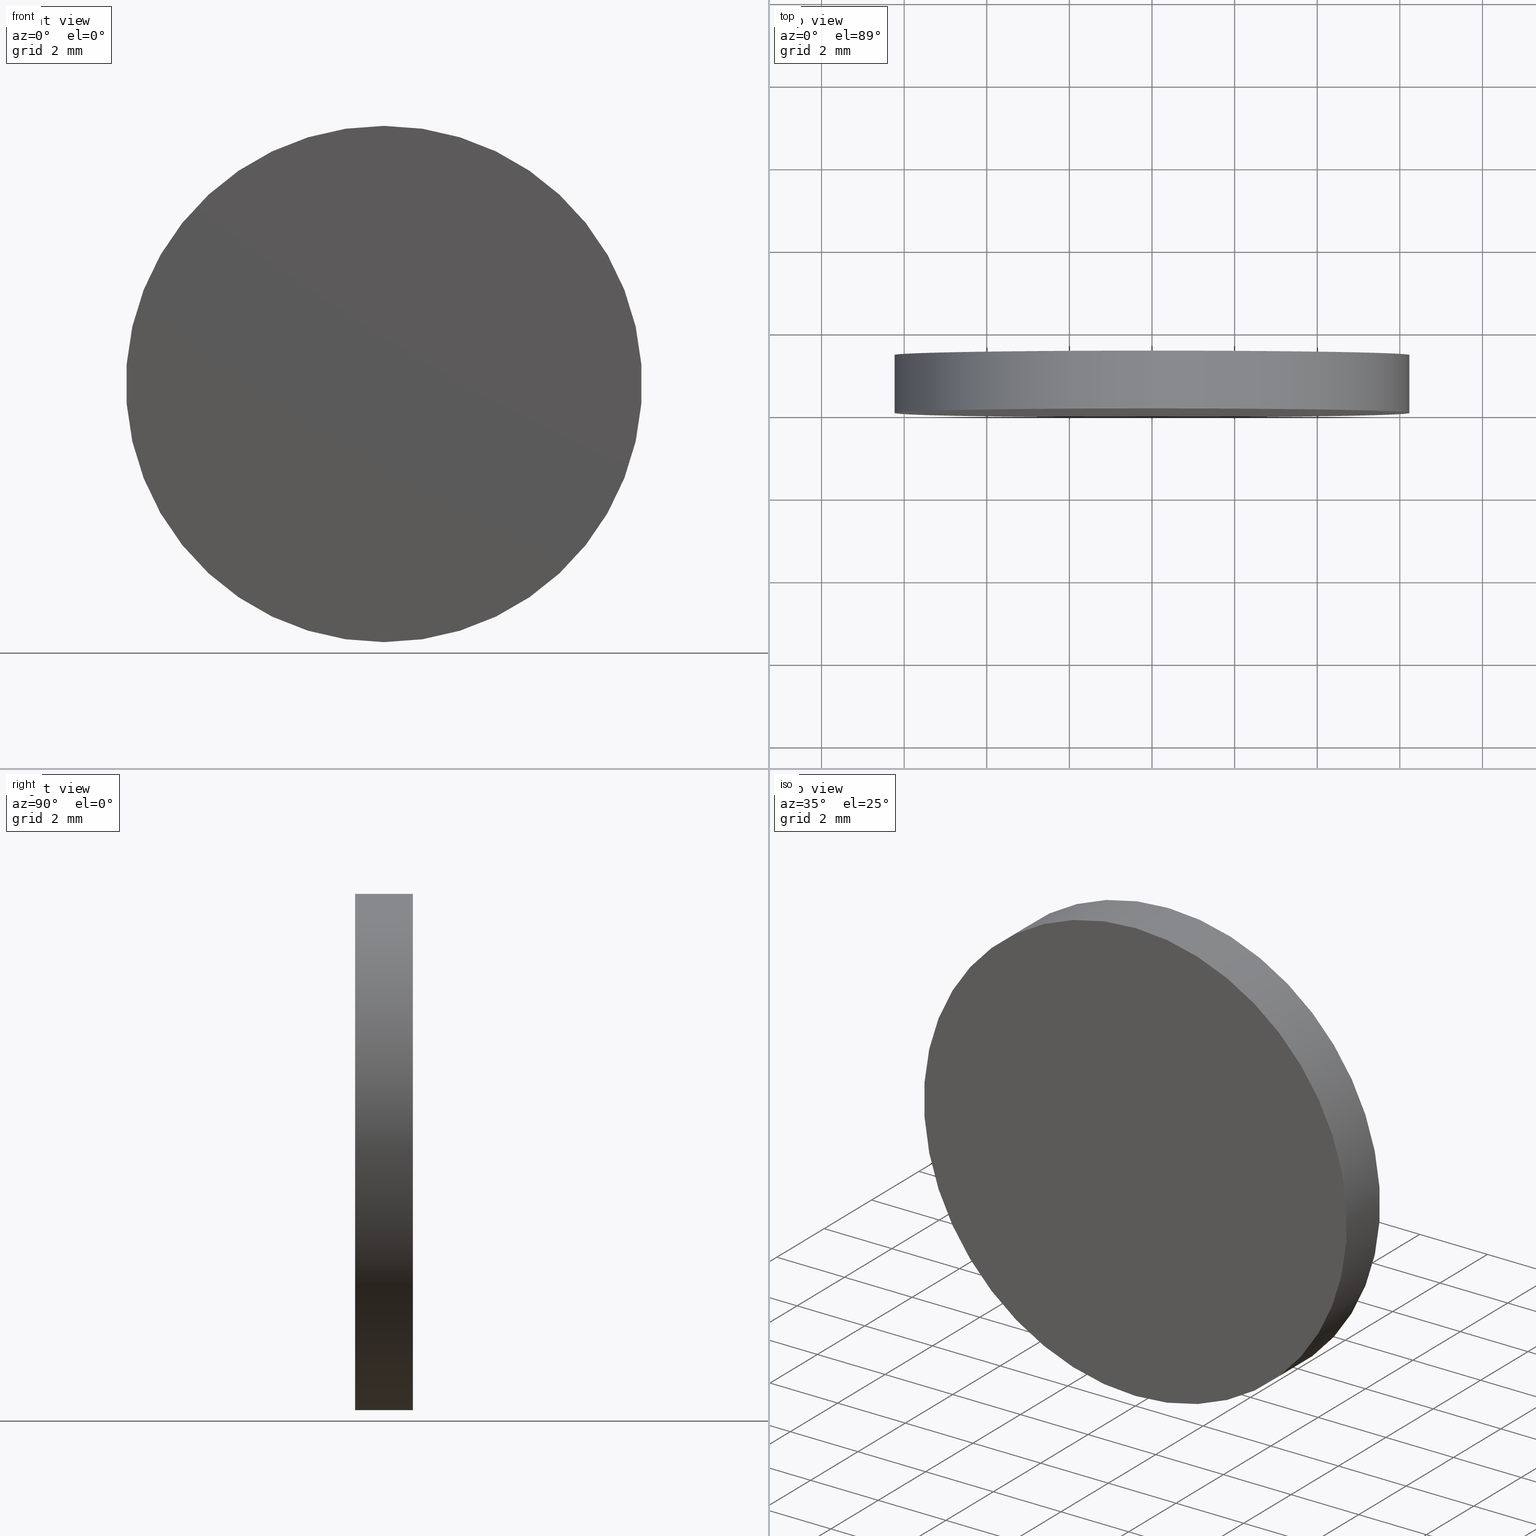
[diagram: canonical four-view strip — front | top / right | iso, engineering-drawing reading convention]
A machine part, canonical four-view strip (front | top / right | iso — engineering-drawing reading convention). The complete STEP part file that produces these views, byte-faithful:
ISO-10303-21;
HEADER;
FILE_DESCRIPTION (( 'STEP AP214' ),
    '1' );
FILE_NAME ('248573.STEP',
    '2019-08-02T08:33:46',
    ( 'user' ),
    ( '΢���й�' ),
    'SwSTEP 2.0',
    'SolidWorks 2016',
    '' );
FILE_SCHEMA (( 'AUTOMOTIVE_DESIGN' ));
ENDSEC;

DATA;
#1 = AXIS2_PLACEMENT_3D ( 'NONE', #104, #37, #92 ) ;
#2 = COLOUR_RGB ( '',1.000000000000000000, 1.000000000000000000, 1.000000000000000000 ) ;
#3 = DIRECTION ( 'NONE',  ( 0.0000000000000000000, 0.0000000000000000000, 1.000000000000000000 ) ) ;
#4 = DIRECTION ( 'NONE',  ( 0.0000000000000000000, 0.0000000000000000000, 1.000000000000000000 ) ) ;
#5 = DIRECTION ( 'NONE',  ( 0.0000000000000000000, 1.000000000000000000, 0.0000000000000000000 ) ) ;
#6 = FILL_AREA_STYLE ('',( #84 ) ) ;
#7 = AXIS2_PLACEMENT_3D ( 'NONE', #59, #5, #46 ) ;
#8 = PRODUCT_CONTEXT ( 'NONE', #118, 'mechanical' ) ;
#9 =( NAMED_UNIT ( * ) SI_UNIT ( $, .STERADIAN. ) SOLID_ANGLE_UNIT ( ) );
#10 = ADVANCED_FACE ( 'NONE', ( #140 ), #73, .F. ) ;
#11 = VERTEX_POINT ( 'NONE', #94 ) ;
#12 = CARTESIAN_POINT ( 'NONE',  ( 0.0000000000000000000, 1.399999999999999900, 0.0000000000000000000 ) ) ;
#13 = CARTESIAN_POINT ( 'NONE',  ( 0.0000000000000000000, 0.0000000000000000000, 0.0000000000000000000 ) ) ;
#14 =( LENGTH_UNIT ( ) NAMED_UNIT ( * ) SI_UNIT ( .MILLI., .METRE. ) );
#15 = EDGE_CURVE ( 'NONE', #11, #115, #136, .T. ) ;
#16 =( NAMED_UNIT ( * ) PLANE_ANGLE_UNIT ( ) SI_UNIT ( $, .RADIAN. ) );
#17 = DIRECTION ( 'NONE',  ( 0.0000000000000000000, 0.0000000000000000000, 1.000000000000000000 ) ) ;
#18 = PRESENTATION_STYLE_ASSIGNMENT (( #31 ) ) ;
#19 =( LENGTH_UNIT ( ) NAMED_UNIT ( * ) SI_UNIT ( .MILLI., .METRE. ) );
#20 = EDGE_CURVE ( 'NONE', #115, #11, #105, .T. ) ;
#21 = DIRECTION ( 'NONE',  ( 0.0000000000000000000, 0.0000000000000000000, -1.000000000000000000 ) ) ;
#22 = STYLED_ITEM ( 'NONE', ( #48 ), #124 ) ;
#23 = EDGE_LOOP ( 'NONE', ( #122, #93, #74, #62 ) ) ;
#24 =( GEOMETRIC_REPRESENTATION_CONTEXT ( 3 ) GLOBAL_UNCERTAINTY_ASSIGNED_CONTEXT ( ( #40 ) ) GLOBAL_UNIT_ASSIGNED_CONTEXT ( ( #19, #64, #9 ) ) REPRESENTATION_CONTEXT ( 'NONE', 'WORKASPACE' ) );
#25 = AXIS2_PLACEMENT_3D ( 'NONE', #97, #29, #137 ) ;
#26 = DIRECTION ( 'NONE',  ( 0.0000000000000000000, 0.0000000000000000000, -1.000000000000000000 ) ) ;
#27 = CARTESIAN_POINT ( 'NONE',  ( 0.0000000000000000000, 1.399999999999999900, -6.250000000000000000 ) ) ;
#28 = SURFACE_STYLE_USAGE ( .BOTH. , #114 ) ;
#29 = DIRECTION ( 'NONE',  ( 0.0000000000000000000, 1.000000000000000000, 0.0000000000000000000 ) ) ;
#30 = EDGE_LOOP ( 'NONE', ( #138, #103 ) ) ;
#31 = SURFACE_STYLE_USAGE ( .BOTH. , #107 ) ;
#32 = ORIENTED_EDGE ( 'NONE', *, *, #33, .T. ) ;
#33 = EDGE_CURVE ( 'NONE', #70, #11, #88, .T. ) ;
#34 = PRODUCT_DEFINITION_FORMATION_WITH_SPECIFIED_SOURCE ( '�κ�', '', #132, .NOT_KNOWN. ) ;
#35 = DIRECTION ( 'NONE',  ( 0.0000000000000000000, -0.0000000000000000000, 1.000000000000000000 ) ) ;
#36 = CARTESIAN_POINT ( 'NONE',  ( 0.0000000000000000000, 1.399999999999999900, -6.250000000000000000 ) ) ;
#37 = DIRECTION ( 'NONE',  ( 0.0000000000000000000, 1.000000000000000000, 0.0000000000000000000 ) ) ;
#38 = CLOSED_SHELL ( 'NONE', ( #85, #135, #106, #10 ) ) ;
#39 = FILL_AREA_STYLE ('',( #71 ) ) ;
#40 = UNCERTAINTY_MEASURE_WITH_UNIT (LENGTH_MEASURE( 1.000000000000000100E-005 ), #19, 'distance_accuracy_value', 'NONE');
#41 = UNCERTAINTY_MEASURE_WITH_UNIT (LENGTH_MEASURE( 1.000000000000000100E-005 ), #96, 'distance_accuracy_value', 'NONE');
#42 = ORIENTED_EDGE ( 'NONE', *, *, #15, .T. ) ;
#43 = CARTESIAN_POINT ( 'NONE',  ( 7.654042494670957600E-016, 0.0000000000000000000, 6.250000000000000000 ) ) ;
#44 = LINE ( 'NONE', #131, #100 ) ;
#45 =( NAMED_UNIT ( * ) SI_UNIT ( $, .STERADIAN. ) SOLID_ANGLE_UNIT ( ) );
#46 = DIRECTION ( 'NONE',  ( 0.0000000000000000000, 0.0000000000000000000, 1.000000000000000000 ) ) ;
#47 = EDGE_LOOP ( 'NONE', ( #125, #56 ) ) ;
#48 = PRESENTATION_STYLE_ASSIGNMENT (( #28 ) ) ;
#49 = EDGE_LOOP ( 'NONE', ( #61, #99, #32, #42 ) ) ;
#50 = MECHANICAL_DESIGN_GEOMETRIC_PRESENTATION_REPRESENTATION (  '', ( #111 ), #113 ) ;
#51 = AXIS2_PLACEMENT_3D ( 'NONE', #12, #67, #3 ) ;
#52 = APPLICATION_PROTOCOL_DEFINITION ( 'draft international standard', 'automotive_design', 1998, #117 ) ;
#53 = EDGE_CURVE ( 'NONE', #54, #115, #44, .T. ) ;
#54 = VERTEX_POINT ( 'NONE', #58 ) ;
#55 = AXIS2_PLACEMENT_3D ( 'NONE', #95, #17, #63 ) ;
#56 = ORIENTED_EDGE ( 'NONE', *, *, #121, .T. ) ;
#57 = CARTESIAN_POINT ( 'NONE',  ( 0.0000000000000000000, 1.399999999999999900, 0.0000000000000000000 ) ) ;
#58 = CARTESIAN_POINT ( 'NONE',  ( 7.654042494670957600E-016, 1.399999999999999900, 6.250000000000000000 ) ) ;
#59 = CARTESIAN_POINT ( 'NONE',  ( 0.0000000000000000000, 1.399999999999999900, 0.0000000000000000000 ) ) ;
#60 = AXIS2_PLACEMENT_3D ( 'NONE', #91, #129, #21 ) ;
#61 = ORIENTED_EDGE ( 'NONE', *, *, #53, .F. ) ;
#62 = ORIENTED_EDGE ( 'NONE', *, *, #33, .F. ) ;
#63 = DIRECTION ( 'NONE',  ( 1.000000000000000000, 0.0000000000000000000, 0.0000000000000000000 ) ) ;
#64 =( NAMED_UNIT ( * ) PLANE_ANGLE_UNIT ( ) SI_UNIT ( $, .RADIAN. ) );
#65 = EDGE_CURVE ( 'NONE', #70, #54, #87, .T. ) ;
#66 = COLOUR_RGB ( '',1.000000000000000000, 1.000000000000000000, 1.000000000000000000 ) ;
#67 = DIRECTION ( 'NONE',  ( 0.0000000000000000000, 1.000000000000000000, 0.0000000000000000000 ) ) ;
#68 = AXIS2_PLACEMENT_3D ( 'NONE', #57, #102, #26 ) ;
#69 = DIRECTION ( 'NONE',  ( 0.0000000000000000000, 1.000000000000000000, 0.0000000000000000000 ) ) ;
#70 = VERTEX_POINT ( 'NONE', #36 ) ;
#71 = FILL_AREA_STYLE_COLOUR ( '', #2 ) ;
#72 = ADVANCED_BREP_SHAPE_REPRESENTATION ( '248573', ( #124, #55 ), #24 ) ;
#73 = PLANE ( 'NONE',  #25 ) ;
#74 = ORIENTED_EDGE ( 'NONE', *, *, #20, .T. ) ;
#75 = SURFACE_STYLE_FILL_AREA ( #39 ) ;
#76 = FACE_OUTER_BOUND ( 'NONE', #23, .T. ) ;
#77 = CYLINDRICAL_SURFACE ( 'NONE', #60, 6.250000000000000000 ) ;
#78 = AXIS2_PLACEMENT_3D ( 'NONE', #13, #69, #4 ) ;
#79 = SURFACE_STYLE_FILL_AREA ( #6 ) ;
#80 = DIRECTION ( 'NONE',  ( 0.0000000000000000000, 1.000000000000000000, 0.0000000000000000000 ) ) ;
#81 = DIRECTION ( 'NONE',  ( -0.0000000000000000000, -1.000000000000000000, -0.0000000000000000000 ) ) ;
#82 = MECHANICAL_DESIGN_GEOMETRIC_PRESENTATION_REPRESENTATION (  '', ( #22 ), #130 ) ;
#83 = VECTOR ( 'NONE', #81, 1000.000000000000000 ) ;
#84 = FILL_AREA_STYLE_COLOUR ( '', #66 ) ;
#85 = ADVANCED_FACE ( 'NONE', ( #76 ), #90, .T. ) ;
#86 =( NAMED_UNIT ( * ) SI_UNIT ( $, .STERADIAN. ) SOLID_ANGLE_UNIT ( ) );
#87 = CIRCLE ( 'NONE', #51, 6.250000000000000000 ) ;
#88 = LINE ( 'NONE', #27, #83 ) ;
#89 = PRESENTATION_LAYER_ASSIGNMENT (  '', '', ( #111 ) ) ;
#90 = CYLINDRICAL_SURFACE ( 'NONE', #68, 6.250000000000000000 ) ;
#91 = CARTESIAN_POINT ( 'NONE',  ( 0.0000000000000000000, 1.399999999999999900, 0.0000000000000000000 ) ) ;
#92 = DIRECTION ( 'NONE',  ( 0.0000000000000000000, 0.0000000000000000000, 1.000000000000000000 ) ) ;
#93 = ORIENTED_EDGE ( 'NONE', *, *, #53, .T. ) ;
#94 = CARTESIAN_POINT ( 'NONE',  ( 0.0000000000000000000, 0.0000000000000000000, -6.250000000000000000 ) ) ;
#95 = CARTESIAN_POINT ( 'NONE',  ( 0.0000000000000000000, 0.0000000000000000000, 0.0000000000000000000 ) ) ;
#96 =( LENGTH_UNIT ( ) NAMED_UNIT ( * ) SI_UNIT ( .MILLI., .METRE. ) );
#97 = CARTESIAN_POINT ( 'NONE',  ( 0.0000000000000000000, 0.0000000000000000000, 0.0000000000000000000 ) ) ;
#98 = PRODUCT_DEFINITION_SHAPE ( 'NONE', 'NONE',  #108 ) ;
#99 = ORIENTED_EDGE ( 'NONE', *, *, #65, .F. ) ;
#100 = VECTOR ( 'NONE', #128, 1000.000000000000000 ) ;
#101 = PRODUCT_DEFINITION_CONTEXT ( 'detailed design', #117, 'design' ) ;
#102 = DIRECTION ( 'NONE',  ( -0.0000000000000000000, -1.000000000000000000, -0.0000000000000000000 ) ) ;
#103 = ORIENTED_EDGE ( 'NONE', *, *, #20, .F. ) ;
#104 = CARTESIAN_POINT ( 'NONE',  ( 0.0000000000000000000, 0.0000000000000000000, 0.0000000000000000000 ) ) ;
#105 = CIRCLE ( 'NONE', #78, 6.250000000000000000 ) ;
#106 = ADVANCED_FACE ( 'NONE', ( #120 ), #127, .T. ) ;
#107 = SURFACE_SIDE_STYLE ('',( #75 ) ) ;
#108 = PRODUCT_DEFINITION ( 'δ֪', '', #34, #101 ) ;
#109 = SHAPE_DEFINITION_REPRESENTATION ( #98, #72 ) ;
#110 = UNCERTAINTY_MEASURE_WITH_UNIT (LENGTH_MEASURE( 1.000000000000000100E-005 ), #14, 'distance_accuracy_value', 'NONE');
#111 = STYLED_ITEM ( 'NONE', ( #18 ), #72 ) ;
#112 = CARTESIAN_POINT ( 'NONE',  ( 0.0000000000000000000, 1.399999999999999900, 0.0000000000000000000 ) ) ;
#113 =( GEOMETRIC_REPRESENTATION_CONTEXT ( 3 ) GLOBAL_UNCERTAINTY_ASSIGNED_CONTEXT ( ( #41 ) ) GLOBAL_UNIT_ASSIGNED_CONTEXT ( ( #96, #133, #86 ) ) REPRESENTATION_CONTEXT ( 'NONE', 'WORKASPACE' ) );
#114 = SURFACE_SIDE_STYLE ('',( #79 ) ) ;
#115 = VERTEX_POINT ( 'NONE', #43 ) ;
#116 = FACE_OUTER_BOUND ( 'NONE', #49, .T. ) ;
#117 = APPLICATION_CONTEXT ( 'automotive_design' ) ;
#118 = APPLICATION_CONTEXT ( 'automotive_design' ) ;
#119 = PRODUCT_RELATED_PRODUCT_CATEGORY ( 'part', '', ( #132 ) ) ;
#120 = FACE_OUTER_BOUND ( 'NONE', #47, .T. ) ;
#121 = EDGE_CURVE ( 'NONE', #54, #70, #123, .T. ) ;
#122 = ORIENTED_EDGE ( 'NONE', *, *, #121, .F. ) ;
#123 = CIRCLE ( 'NONE', #7, 6.250000000000000000 ) ;
#124 = MANIFOLD_SOLID_BREP ( '͹̨-����1', #38 ) ;
#125 = ORIENTED_EDGE ( 'NONE', *, *, #65, .T. ) ;
#126 = AXIS2_PLACEMENT_3D ( 'NONE', #112, #80, #35 ) ;
#127 = PLANE ( 'NONE',  #126 ) ;
#128 = DIRECTION ( 'NONE',  ( -0.0000000000000000000, -1.000000000000000000, -0.0000000000000000000 ) ) ;
#129 = DIRECTION ( 'NONE',  ( -0.0000000000000000000, -1.000000000000000000, -0.0000000000000000000 ) ) ;
#130 =( GEOMETRIC_REPRESENTATION_CONTEXT ( 3 ) GLOBAL_UNCERTAINTY_ASSIGNED_CONTEXT ( ( #110 ) ) GLOBAL_UNIT_ASSIGNED_CONTEXT ( ( #14, #16, #45 ) ) REPRESENTATION_CONTEXT ( 'NONE', 'WORKASPACE' ) );
#131 = CARTESIAN_POINT ( 'NONE',  ( 7.654042494670957600E-016, 1.399999999999999900, 6.250000000000000000 ) ) ;
#132 = PRODUCT ( '248573', '248573', '', ( #8 ) ) ;
#133 =( NAMED_UNIT ( * ) PLANE_ANGLE_UNIT ( ) SI_UNIT ( $, .RADIAN. ) );
#134 = APPLICATION_PROTOCOL_DEFINITION ( 'draft international standard', 'automotive_design', 1998, #118 ) ;
#135 = ADVANCED_FACE ( 'NONE', ( #116 ), #77, .T. ) ;
#136 = CIRCLE ( 'NONE', #1, 6.250000000000000000 ) ;
#137 = DIRECTION ( 'NONE',  ( 0.0000000000000000000, -0.0000000000000000000, 1.000000000000000000 ) ) ;
#138 = ORIENTED_EDGE ( 'NONE', *, *, #15, .F. ) ;
#139 = PRESENTATION_LAYER_ASSIGNMENT (  '', '', ( #22 ) ) ;
#140 = FACE_OUTER_BOUND ( 'NONE', #30, .T. ) ;
ENDSEC;
END-ISO-10303-21;
